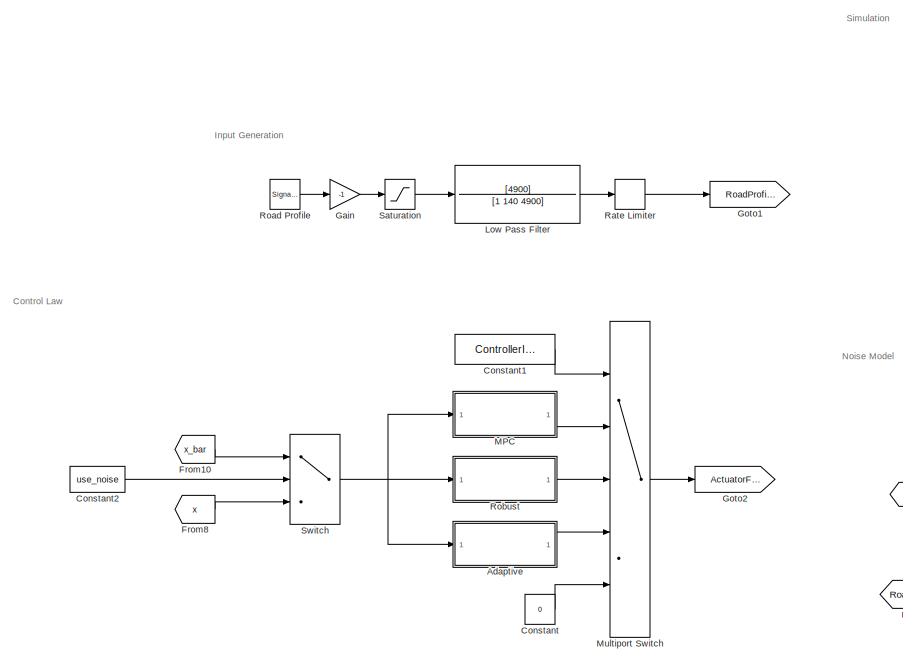
[diagram: root canvas - part 1/2, left side, full height]
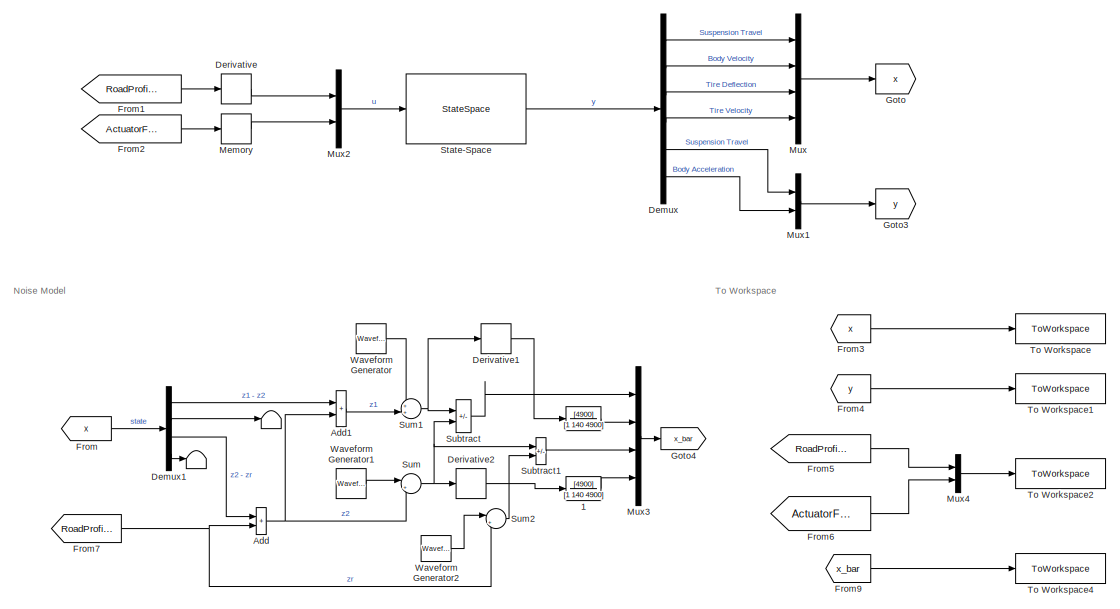
[diagram: root canvas - part 2/2, right side, full height]
MODEL slx_cce72fe490f0
KIND model
CONFIG AbsTol = auto
CONFIG EnableMultiTasking = off
CONFIG FixedStep = 0.002
CONFIG MaxStep = auto
CONFIG MinStep = auto
CONFIG RelTol = 1e-3
CONFIG SampleTimeConstraint = Unconstrained
CONFIG SolverName = ode4
CONFIG StartTime = 0.0
CONFIG StopTime = 5
BLOCK [Terminator]  
BLOCK [Terminator]   
BLOCK [TransferFcn]    
  Denominator = [1 140 4900]
  Numerator = [4900]
BLOCK [TransferFcn]    1
  Denominator = [1 140 4900]
  Numerator = [4900]
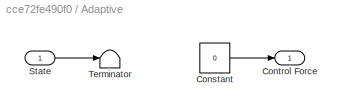
BLOCK [SubSystem] Adaptive
  Ports = [1, 1]
  RequestExecContextInheritance = off
BLOCK [Constant] Adaptive/Constant
  Value = 0
BLOCK [Outport] Adaptive/Control Force
BLOCK [Inport] Adaptive/State
BLOCK [Terminator] Adaptive/Terminator
BLOCK [Sum] Add
  IconShape = rectangular
  NameLocation = top
  Ports = [2, 1]
BLOCK [Sum] Add1
  IconShape = rectangular
  Ports = [2, 1]
BLOCK [Constant] Constant
  Value = 0
BLOCK [Constant] Constant1
  Value = ControllerIndex
BLOCK [Constant] Constant2
  Value = use_noise
BLOCK [Demux] Demux
  Outputs = 6
  Ports = [1, 6]
BLOCK [Demux] Demux1
  Ports = [1, 4]
BLOCK [Derivative] Derivative
BLOCK [Derivative] Derivative1
BLOCK [Derivative] Derivative2
BLOCK [From] From
  GotoTag = x
BLOCK [From] From1
  GotoTag = RoadProfile
BLOCK [From] From10
  GotoTag = x_bar
BLOCK [From] From2
  GotoTag = ActuatorForce
BLOCK [From] From3
  GotoTag = x
BLOCK [From] From4
  GotoTag = y
BLOCK [From] From5
  GotoTag = RoadProfile
BLOCK [From] From6
  GotoTag = ActuatorForce
BLOCK [From] From7
  GotoTag = RoadProfile
BLOCK [From] From8
  GotoTag = x
BLOCK [From] From9
  GotoTag = x_bar
BLOCK [Gain] Gain
  Gain = -1
BLOCK [Goto] Goto
  GotoTag = x
BLOCK [Goto] Goto1
  GotoTag = RoadProfile
BLOCK [Goto] Goto2
  GotoTag = ActuatorForce
BLOCK [Goto] Goto3
  GotoTag = y
BLOCK [Goto] Goto4
  GotoTag = x_bar
BLOCK [TransferFcn] Low Pass Filter 
  Denominator = [1 140 4900]
  Numerator = [4900]
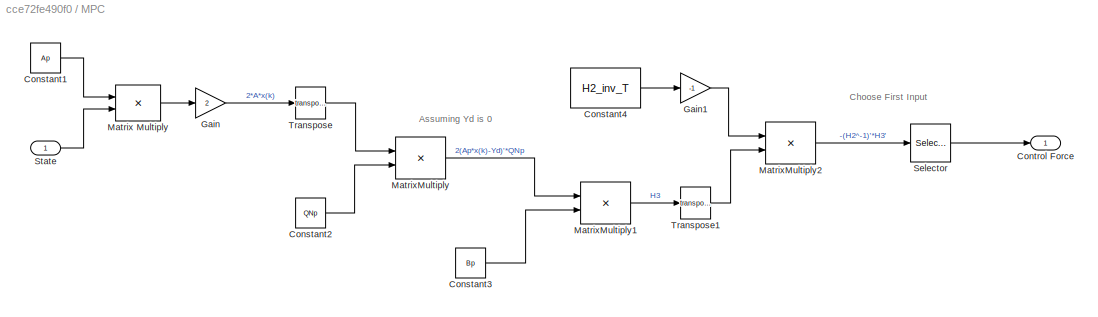
BLOCK [SubSystem] MPC
  Ports = [1, 1]
  RequestExecContextInheritance = off
BLOCK [Constant] MPC/Constant1
  Value = Ap
BLOCK [Constant] MPC/Constant2
  Value = QNp
BLOCK [Constant] MPC/Constant3
  Value = Bp
BLOCK [Constant] MPC/Constant4
  Value = H2_inv_T
BLOCK [Outport] MPC/Control Force
BLOCK [Gain] MPC/Gain
  Gain = 2
BLOCK [Gain] MPC/Gain1
  Gain = -1
BLOCK [Product] MPC/Matrix Multiply
  Multiplication = Matrix(*)
  Ports = [2, 1]
BLOCK [Product] MPC/MatrixMultiply
  Multiplication = Matrix(*)
  Ports = [2, 1]
BLOCK [Product] MPC/MatrixMultiply1
  Multiplication = Matrix(*)
  Ports = [2, 1]
BLOCK [Product] MPC/MatrixMultiply2
  Multiplication = Matrix(*)
  Ports = [2, 1]
BLOCK [Selector] MPC/Selector
  IndexOptions = Index vector (dialog)
  Indices = [1]
  InputPortWidth = Nc
  OutputSizes = 1
  Ports = [1, 1]
BLOCK [Inport] MPC/State
BLOCK [Math] MPC/Transpose
  Operator = transpose
  Ports = [1, 1]
BLOCK [Math] MPC/Transpose1
  Operator = transpose
  Ports = [1, 1]
BLOCK [Memory] Memory
BLOCK [MultiPortSwitch] Multiport Switch
  DataPortForDefault = Additional data port
  DiagnosticForDefault = None
  InputSameDT = off
  Ports = [5, 1]
  SaturateOnIntegerOverflow = off
BLOCK [Mux] Mux
  DisplayOption = bar
  Ports = [4, 1]
BLOCK [Mux] Mux1
  DisplayOption = bar
  Inputs = 2
  Ports = [2, 1]
BLOCK [Mux] Mux2
  DisplayOption = bar
  Inputs = 2
  Ports = [2, 1]
BLOCK [Mux] Mux3
  DisplayOption = bar
  Ports = [4, 1]
BLOCK [Mux] Mux4
  DisplayOption = bar
  Inputs = 2
  Ports = [2, 1]
BLOCK [RateLimiter] Rate Limiter
  FallingSlewLimit = -0.2
  RisingSlewLimit = 0.2
  SampleTimeMode = inherited
BLOCK [SignalGenerator] Road Profile 
  Amplitude = 0.01
  Frequency = 0.3
  Ports = [0, 1]
  WaveForm = square
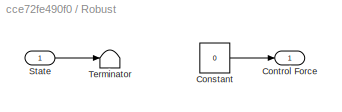
BLOCK [SubSystem] Robust
  Ports = [1, 1]
  RequestExecContextInheritance = off
BLOCK [Constant] Robust/Constant
  Value = 0
BLOCK [Outport] Robust/Control Force
BLOCK [Inport] Robust/State
BLOCK [Terminator] Robust/Terminator
BLOCK [Saturate] Saturation
  LowerLimit = -1
  UpperLimit = 1
BLOCK [StateSpace] State-Space
  A = A
  B = B
  C = [eye(4);C]
  D = [zeros(4,2);D]
  InitialCondition = [0;0;0;0]
  Ports = [1, 1]
BLOCK [Sum] Subtract
  IconShape = rectangular
  Inputs = +-
  Ports = [2, 1]
BLOCK [Sum] Subtract1
  IconShape = rectangular
  Inputs = +-
  Ports = [2, 1]
BLOCK [Sum] Sum
  Inputs = |++
  Ports = [2, 1]
BLOCK [Sum] Sum1
  Inputs = ++|
  Ports = [2, 1]
BLOCK [Sum] Sum2
  Inputs = |++
  Ports = [2, 1]
BLOCK [Switch] Switch
  Criteria = u2 > Threshold
  InputSameDT = off
  SaturateOnIntegerOverflow = off
BLOCK [ToWorkspace] To Workspace
  FixptAsFi = on
  MaxDataPoints = inf
  Ports = [1]
  SampleTime = -1
  SaveFormat = Timeseries
  VariableName = state
BLOCK [ToWorkspace] To Workspace1
  FixptAsFi = on
  MaxDataPoints = inf
  Ports = [1]
  SampleTime = -1
  SaveFormat = Timeseries
  VariableName = output
BLOCK [ToWorkspace] To Workspace2
  FixptAsFi = on
  MaxDataPoints = inf
  Ports = [1]
  SampleTime = -1
  SaveFormat = Timeseries
  VariableName = input
BLOCK [ToWorkspace] To Workspace4
  FixptAsFi = on
  MaxDataPoints = inf
  Ports = [1]
  SampleTime = -1
  SaveFormat = Timeseries
  VariableName = noisy_state
BLOCK [Reference] Waveform Generator  REF=simulink/Sources/Waveform
Generator
  Ports = [0, 1]
  SourceBlock = simulink/Sources/Waveform\nGenerator
  SourceProductBaseCode = SL
  SourceType = WaveformGenerator
BLOCK [Reference] Waveform Generator1  REF=simulink/Sources/Waveform
Generator
  Ports = [0, 1]
  SourceBlock = simulink/Sources/Waveform\nGenerator
  SourceProductBaseCode = SL
  SourceType = WaveformGenerator
BLOCK [Reference] Waveform Generator2  REF=simulink/Sources/Waveform
Generator
  Ports = [0, 1]
  SourceBlock = simulink/Sources/Waveform\nGenerator
  SourceProductBaseCode = SL
  SourceType = WaveformGenerator
ANNOTATION (root): Control Law
ANNOTATION (root): Input Generation
ANNOTATION (root): Noise Model
ANNOTATION (root): Simulation
ANNOTATION (root): To Workspace
ANNOTATION MPC: Assuming Yd is 0
ANNOTATION MPC: Choose First Input
LINE    1:1 -> Mux3:4
LINE    :1 -> Mux3:2
LINE Adaptive/Constant:1 -> Adaptive/Control Force:1
LINE Adaptive/State:1 -> Adaptive/Terminator:1
LINE Adaptive:1 -> Multiport Switch:4
LINE Add1:1 -> Sum1:2
NET Add:1 -> Add1:2, Sum:2
LINE Constant1:1 -> Multiport Switch:1
LINE Constant2:1 -> Switch:2
LINE Constant:1 -> Multiport Switch:5
LINE Demux1:1 -> Add1:1
LINE Demux1:2 ->   :1
LINE Demux1:3 -> Add:1
LINE Demux1:4 ->  :1
LINE Demux:1 -> Mux:1
LINE Demux:2 -> Mux:2
LINE Demux:3 -> Mux:3
LINE Demux:4 -> Mux:4
LINE Demux:5 -> Mux1:1
LINE Demux:6 -> Mux1:2
LINE Derivative1:1 ->    :1
LINE Derivative2:1 ->    1:1
LINE Derivative:1 -> Mux2:1
LINE From10:1 -> Switch:1
LINE From1:1 -> Derivative:1
LINE From2:1 -> Memory:1
LINE From3:1 -> To Workspace:1
LINE From4:1 -> To Workspace1:1
LINE From5:1 -> Mux4:1
LINE From6:1 -> Mux4:2
NET From7:1 -> Add:2, Sum2:2
LINE From8:1 -> Switch:3
LINE From9:1 -> To Workspace4:1
LINE From:1 -> Demux1:1
LINE Gain:1 -> Saturation:1
LINE Low Pass Filter :1 -> Rate Limiter:1
LINE MPC/Constant1:1 -> MPC/Matrix Multiply:1
LINE MPC/Constant2:1 -> MPC/MatrixMultiply:2
LINE MPC/Constant3:1 -> MPC/MatrixMultiply1:2
LINE MPC/Constant4:1 -> MPC/Gain1:1
LINE MPC/Gain1:1 -> MPC/MatrixMultiply2:1
LINE MPC/Gain:1 -> MPC/Transpose:1
LINE MPC/Matrix Multiply:1 -> MPC/Gain:1
LINE MPC/MatrixMultiply1:1 -> MPC/Transpose1:1
LINE MPC/MatrixMultiply2:1 -> MPC/Selector:1
LINE MPC/MatrixMultiply:1 -> MPC/MatrixMultiply1:1
LINE MPC/Selector:1 -> MPC/Control Force:1
LINE MPC/State:1 -> MPC/Matrix Multiply:2
LINE MPC/Transpose1:1 -> MPC/MatrixMultiply2:2
LINE MPC/Transpose:1 -> MPC/MatrixMultiply:1
LINE MPC:1 -> Multiport Switch:2
LINE Memory:1 -> Mux2:2
LINE Multiport Switch:1 -> Goto2:1
LINE Mux1:1 -> Goto3:1
LINE Mux2:1 -> State-Space:1
LINE Mux3:1 -> Goto4:1
LINE Mux4:1 -> To Workspace2:1
LINE Mux:1 -> Goto:1
LINE Rate Limiter:1 -> Goto1:1
LINE Road Profile :1 -> Gain:1
LINE Robust/Constant:1 -> Robust/Control Force:1
LINE Robust/State:1 -> Robust/Terminator:1
LINE Robust:1 -> Multiport Switch:3
LINE Saturation:1 -> Low Pass Filter :1
LINE State-Space:1 -> Demux:1
LINE Subtract1:1 -> Mux3:3
LINE Subtract:1 -> Mux3:1
NET Sum1:1 -> Derivative1:1, Subtract:1
LINE Sum2:1 -> Subtract1:2
NET Sum:1 -> Derivative2:1, Subtract1:1, Subtract:2
NET Switch:1 -> Adaptive:1, MPC:1, Robust:1
LINE Waveform Generator1:1 -> Sum:1
LINE Waveform Generator2:1 -> Sum2:1
LINE Waveform Generator:1 -> Sum1:1
note: NET lines group one-source signal fan-out (src -> all destinations, sorted); 1:1 wires keep LINE
